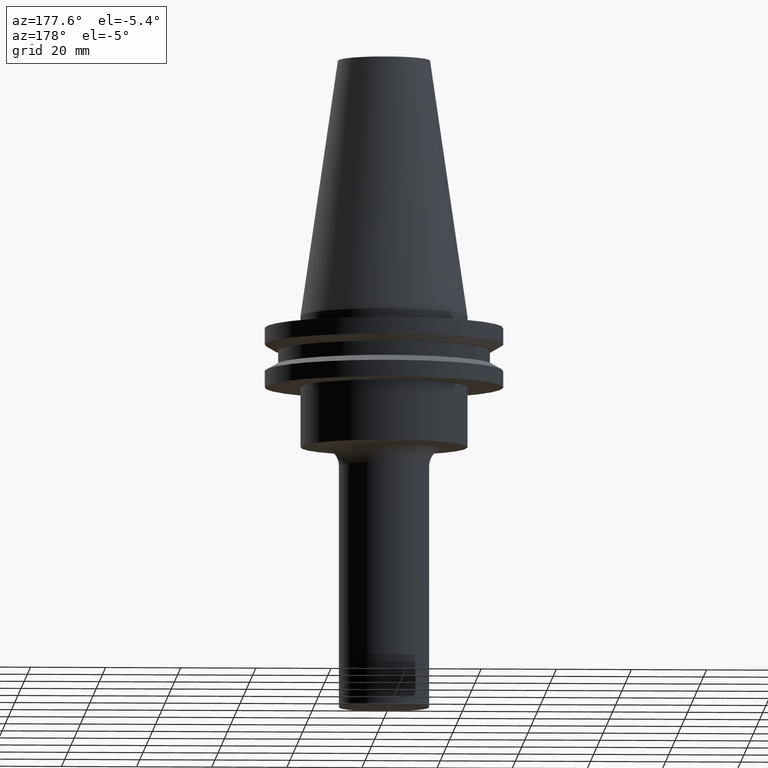
[diagram: clean part render]
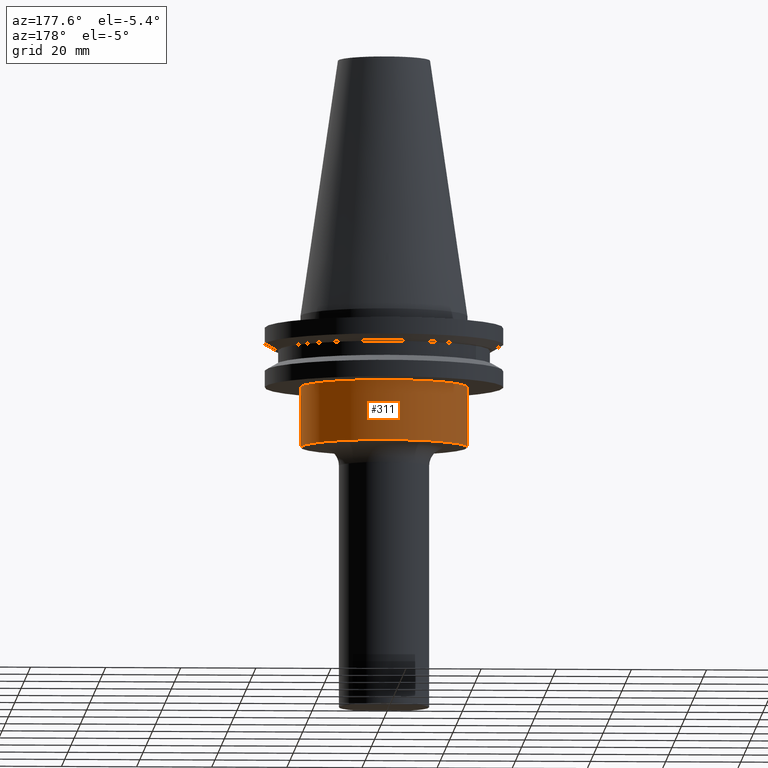
[diagram: same view with one face highlighted and labeled with its STEP entity id]
A machine part, auxiliary view. The second image highlights one B-rep face of the part: STEP entity #311.
In plain terms, the highlighted cylindrical surface (partial cylindrical patch) has radius 22.225 mm, axis along (-0, -0, 1).
Its self-contained STEP definition (entity closure, byte-faithful):
#1 = CARTESIAN_POINT ( 'NONE',  ( 22.22500000000000142, 0.000000000000000000, 68.25000000000000000 ) ) ;
#24 = DIRECTION ( 'NONE',  ( 1.000000000000000000, 0.000000000000000000, 0.000000000000000000 ) ) ;
#36 = DIRECTION ( 'NONE',  ( 1.000000000000000000, 0.000000000000000000, 0.000000000000000000 ) ) ;
#40 = AXIS2_PLACEMENT_3D ( 'NONE', #320, #561, #24 ) ;
#45 = CARTESIAN_POINT ( 'NONE',  ( 0.000000000000000000, 0.000000000000000000, 68.25000000000000000 ) ) ;
#78 = EDGE_LOOP ( 'NONE', ( #388, #493, #736, #271 ) ) ;
#89 = VERTEX_POINT ( 'NONE', #672 ) ;
#113 = LINE ( 'NONE', #420, #327 ) ;
#150 = DIRECTION ( 'NONE',  ( 1.000000000000000000, 0.000000000000000000, 0.000000000000000000 ) ) ;
#177 = EDGE_CURVE ( 'NONE', #527, #372, #769, .T. ) ;
#209 = CARTESIAN_POINT ( 'NONE',  ( 0.000000000000000000, 0.000000000000000000, -35.04999999999999716 ) ) ;
#271 = ORIENTED_EDGE ( 'NONE', *, *, #382, .F. ) ;
#276 = FACE_OUTER_BOUND ( 'NONE', #78, .T. ) ;
#311 = ADVANCED_FACE ( 'NONE', ( #276 ), #329, .T. ) ;
#320 = CARTESIAN_POINT ( 'NONE',  ( 0.000000000000000000, 0.000000000000000000, -19.04999999999999716 ) ) ;
#327 = VECTOR ( 'NONE', #592, 1000.000000000000000 ) ;
#329 = CYLINDRICAL_SURFACE ( 'NONE', #617, 22.22500000000000142 ) ;
#330 = VERTEX_POINT ( 'NONE', #394 ) ;
#331 = EDGE_CURVE ( 'NONE', #89, #330, #402, .T. ) ;
#354 = VECTOR ( 'NONE', #645, 1000.000000000000000 ) ;
#372 = VERTEX_POINT ( 'NONE', #564 ) ;
#382 = EDGE_CURVE ( 'NONE', #89, #527, #713, .T. ) ;
#388 = ORIENTED_EDGE ( 'NONE', *, *, #331, .T. ) ;
#394 = CARTESIAN_POINT ( 'NONE',  ( -22.22500000000000142, 2.721777511104992849E-15, -35.04999999999999716 ) ) ;
#399 = DIRECTION ( 'NONE',  ( -0.000000000000000000, -0.000000000000000000, 1.000000000000000000 ) ) ;
#402 = CIRCLE ( 'NONE', #677, 22.22500000000000142 ) ;
#420 = CARTESIAN_POINT ( 'NONE',  ( -22.22500000000000142, 2.721777511104992849E-15, 68.25000000000000000 ) ) ;
#452 = EDGE_CURVE ( 'NONE', #330, #372, #113, .T. ) ;
#493 = ORIENTED_EDGE ( 'NONE', *, *, #452, .T. ) ;
#527 = VERTEX_POINT ( 'NONE', #587 ) ;
#561 = DIRECTION ( 'NONE',  ( -0.000000000000000000, -0.000000000000000000, 1.000000000000000000 ) ) ;
#564 = CARTESIAN_POINT ( 'NONE',  ( -22.22500000000000142, 2.721777511104992849E-15, -19.04999999999999716 ) ) ;
#587 = CARTESIAN_POINT ( 'NONE',  ( 22.22500000000000142, 0.000000000000000000, -19.04999999999999716 ) ) ;
#592 = DIRECTION ( 'NONE',  ( -0.000000000000000000, -0.000000000000000000, 1.000000000000000000 ) ) ;
#617 = AXIS2_PLACEMENT_3D ( 'NONE', #45, #695, #150 ) ;
#645 = DIRECTION ( 'NONE',  ( -0.000000000000000000, -0.000000000000000000, 1.000000000000000000 ) ) ;
#672 = CARTESIAN_POINT ( 'NONE',  ( 22.22500000000000142, 0.000000000000000000, -35.04999999999999716 ) ) ;
#677 = AXIS2_PLACEMENT_3D ( 'NONE', #209, #399, #36 ) ;
#695 = DIRECTION ( 'NONE',  ( -0.000000000000000000, -0.000000000000000000, 1.000000000000000000 ) ) ;
#713 = LINE ( 'NONE', #1, #354 ) ;
#736 = ORIENTED_EDGE ( 'NONE', *, *, #177, .F. ) ;
#769 = CIRCLE ( 'NONE', #40, 22.22500000000000142 ) ;